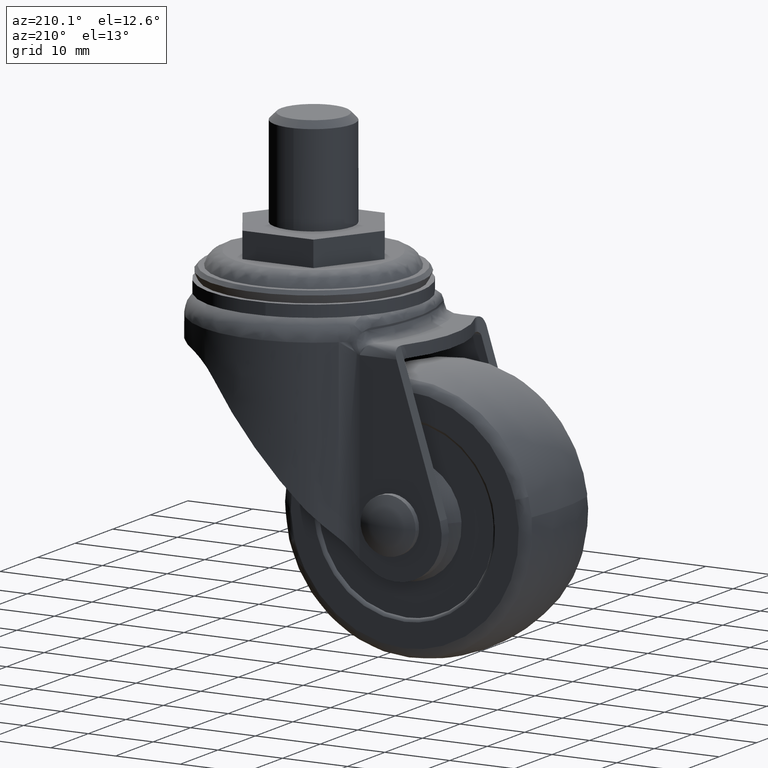
[diagram: clean part render]
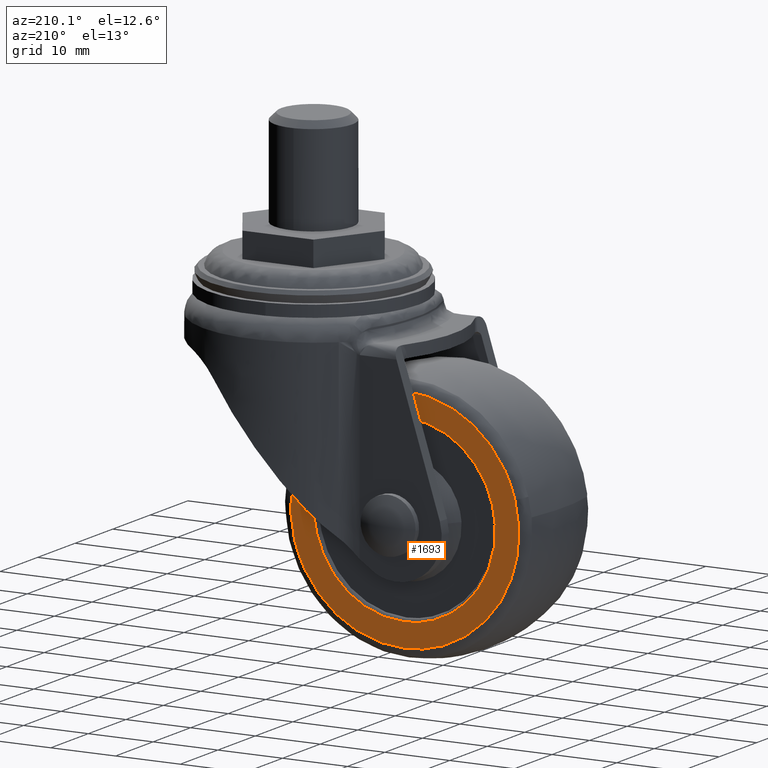
[diagram: same view with one face highlighted and labeled with its STEP entity id]
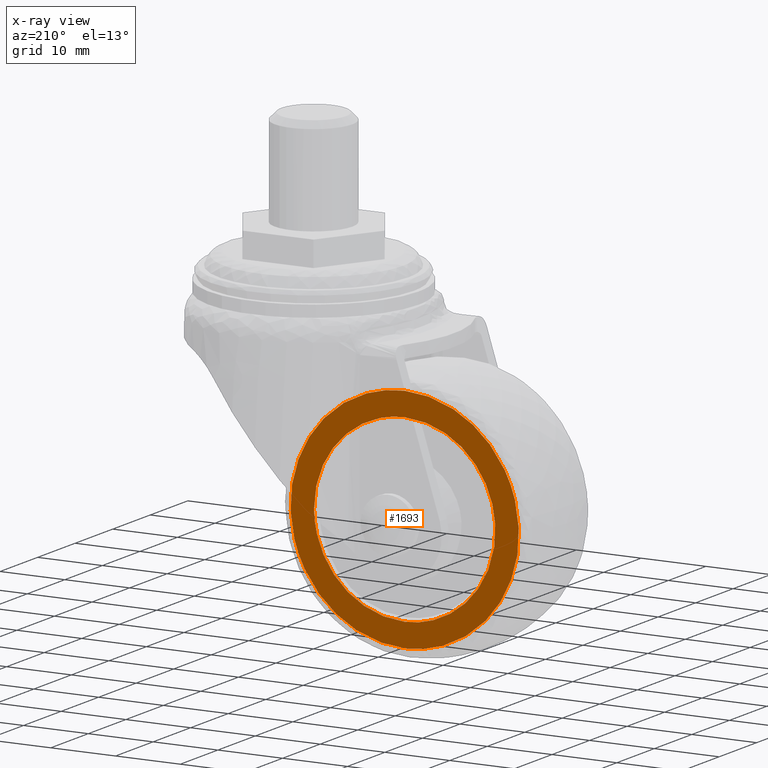
[diagram: x-ray of the same camera — body ghosted, the highlighted face saturated]
A machine part, auxiliary view. The second image highlights one B-rep face of the part: STEP entity #1693.
The next image is the same camera in x-ray: the body ghosted, the highlighted face saturated — about 0% of this face is hidden behind the body in this view.
In plain terms, the highlighted face is a freeform B-spline surface patch.
Its self-contained STEP definition (entity closure, byte-faithful):
#1111=CARTESIAN_POINT('',(-1.983238123140746,8.499999999999947,-37.697853754345672));
#1112=VERTEX_POINT('',#1111);
#1126=CARTESIAN_POINT('',(-19.0,8.500000000000000,-15.473026999999901));
#1127=VERTEX_POINT('',#1126);
#1128=CARTESIAN_POINT('',(-1.983238123140746,8.499999999999947,-37.697853754345680));
#1129=CARTESIAN_POINT('',(-1.373020999999999,8.500000000000000,-35.439423272947117));
#1130=CARTESIAN_POINT('',(-1.373020999999999,8.500000000000000,-33.100005999999887));
#1131=CARTESIAN_POINT('',(-1.373020999999999,8.500000000000000,-15.473026999999901));
#1132=CARTESIAN_POINT('',(-19.0,8.500000000000000,-15.473026999999901));
#1140=(BOUNDED_CURVE()B_SPLINE_CURVE(2,(#1128,#1129,#1130,#1131,#1132),.UNSPECIFIED.,.F.,.U.)B_SPLINE_CURVE_WITH_KNOTS((3,2,3),(0.205522207669771,0.250000000000000,0.500000000000000),.UNSPECIFIED.)CURVE()GEOMETRIC_REPRESENTATION_ITEM()RATIONAL_B_SPLINE_CURVE((0.914323587274300,0.947891024954732,1.0,0.707106781186547,1.0))REPRESENTATION_ITEM(''));
#1141=EDGE_CURVE('',#1112,#1127,#1140,.T.);
#1143=CARTESIAN_POINT('',(-36.016761876859263,8.499999999999947,-28.502158245654119));
#1144=VERTEX_POINT('',#1143);
#1145=CARTESIAN_POINT('',(-19.0,8.500000000000000,-15.473026999999901));
#1146=CARTESIAN_POINT('',(-32.496352864090724,8.500000000000000,-15.473026999999904));
#1147=CARTESIAN_POINT('',(-36.016761876859256,8.499999999999947,-28.502158245654115));
#1155=(BOUNDED_CURVE()B_SPLINE_CURVE(2,(#1145,#1146,#1147),.UNSPECIFIED.,.F.,.U.)B_SPLINE_CURVE_WITH_KNOTS((3,3),(0.500000000000000,0.705522207669770),.UNSPECIFIED.)CURVE()GEOMETRIC_REPRESENTATION_ITEM()RATIONAL_B_SPLINE_CURVE((1.0,0.759215756231816,0.914323587274299))REPRESENTATION_ITEM(''));
#1156=EDGE_CURVE('',#1127,#1144,#1155,.T.);
#1258=CARTESIAN_POINT('',(-19.0,8.500000000000000,-50.726984999999900));
#1259=VERTEX_POINT('',#1258);
#1260=CARTESIAN_POINT('',(-36.016761876859242,8.499999999999947,-28.502158245654122));
#1261=CARTESIAN_POINT('',(-36.626978999999999,8.500000000000000,-30.760588727052664));
#1262=CARTESIAN_POINT('',(-36.626979000000013,8.500000000000000,-33.100005999999887));
#1263=CARTESIAN_POINT('',(-36.626979000000006,8.500000000000000,-50.726984999999907));
#1264=CARTESIAN_POINT('',(-19.0,8.500000000000000,-50.726984999999900));
#1272=(BOUNDED_CURVE()B_SPLINE_CURVE(2,(#1260,#1261,#1262,#1263,#1264),.UNSPECIFIED.,.F.,.U.)B_SPLINE_CURVE_WITH_KNOTS((3,2,3),(0.705522207669771,0.750000000000000,1.0),.UNSPECIFIED.)CURVE()GEOMETRIC_REPRESENTATION_ITEM()RATIONAL_B_SPLINE_CURVE((0.914323587274300,0.947891024954732,1.0,0.707106781186547,1.0))REPRESENTATION_ITEM(''));
#1273=EDGE_CURVE('',#1144,#1259,#1272,.T.);
#1275=CARTESIAN_POINT('',(-19.0,8.500000000000000,-50.726984999999900));
#1276=CARTESIAN_POINT('',(-5.503647135909214,8.500000000000000,-50.726984999999907));
#1277=CARTESIAN_POINT('',(-1.983238123140746,8.499999999999947,-37.697853754345680));
#1285=(BOUNDED_CURVE()B_SPLINE_CURVE(2,(#1275,#1276,#1277),.UNSPECIFIED.,.F.,.U.)B_SPLINE_CURVE_WITH_KNOTS((3,3),(0.0,0.205522207669771),.UNSPECIFIED.)CURVE()GEOMETRIC_REPRESENTATION_ITEM()RATIONAL_B_SPLINE_CURVE((1.0,0.759215756231815,0.914323587274300))REPRESENTATION_ITEM(''));
#1286=EDGE_CURVE('',#1259,#1112,#1285,.T.);
#1321=CARTESIAN_POINT('',(-32.965947361547947,8.500000000000018,-32.123738525522853));
#1322=VERTEX_POINT('',#1321);
#1323=CARTESIAN_POINT('',(-19.0,8.500000000000000,-47.100034000000043));
#1324=VERTEX_POINT('',#1323);
#1325=CARTESIAN_POINT('',(-32.965947361547954,8.500000000000018,-32.123738525522846));
#1326=CARTESIAN_POINT('',(-33.000028000000135,8.500000000000000,-32.611277400125502));
#1327=CARTESIAN_POINT('',(-33.000028000000142,8.500000000000000,-33.100005999999887));
#1328=CARTESIAN_POINT('',(-33.000028000000135,8.500000000000002,-47.100034000000058));
#1329=CARTESIAN_POINT('',(-19.0,8.500000000000000,-47.100034000000043));
#1337=(BOUNDED_CURVE()B_SPLINE_CURVE(2,(#1325,#1326,#1327,#1328,#1329),.UNSPECIFIED.,.F.,.U.)B_SPLINE_CURVE_WITH_KNOTS((3,2,3),(0.737833686530885,0.750000000000000,1.0),.UNSPECIFIED.)CURVE()GEOMETRIC_REPRESENTATION_ITEM()RATIONAL_B_SPLINE_CURVE((0.972879876378078,0.985746277147750,1.0,0.707106781186548,1.0))REPRESENTATION_ITEM(''));
#1338=EDGE_CURVE('',#1322,#1324,#1337,.T.);
#1387=CARTESIAN_POINT('',(-5.001077386810681,8.500000000000018,-33.275930910346361));
#1388=VERTEX_POINT('',#1387);
#1402=CARTESIAN_POINT('',(-19.0,8.500000000000000,-47.100034000000043));
#1403=CARTESIAN_POINT('',(-5.174805331306712,8.500000000000002,-47.100034000000058));
#1404=CARTESIAN_POINT('',(-5.001077386810681,8.500000000000018,-33.275930910346361));
#1412=(BOUNDED_CURVE()B_SPLINE_CURVE(2,(#1402,#1403,#1404),.UNSPECIFIED.,.F.,.U.)B_SPLINE_CURVE_WITH_KNOTS((3,3),(0.0,0.247784295917362),.UNSPECIFIED.)CURVE()GEOMETRIC_REPRESENTATION_ITEM()RATIONAL_B_SPLINE_CURVE((1.0,0.709702639989356,0.994854295633962))REPRESENTATION_ITEM(''));
#1413=EDGE_CURVE('',#1324,#1388,#1412,.T.);
#1441=CARTESIAN_POINT('',(-19.0,8.500000000000000,-19.099977999999759));
#1442=VERTEX_POINT('',#1441);
#1443=CARTESIAN_POINT('',(-19.0,8.500000000000000,-19.099977999999759));
#1444=CARTESIAN_POINT('',(-32.055541972441070,8.500000000000000,-19.099977999999759));
#1445=CARTESIAN_POINT('',(-32.965947361547954,8.500000000000018,-32.123738525522853));
#1453=(BOUNDED_CURVE()B_SPLINE_CURVE(2,(#1443,#1444,#1445),.UNSPECIFIED.,.F.,.U.)B_SPLINE_CURVE_WITH_KNOTS((3,3),(0.500000000000000,0.737833686530884),.UNSPECIFIED.)CURVE()GEOMETRIC_REPRESENTATION_ITEM()RATIONAL_B_SPLINE_CURVE((1.0,0.721360504038799,0.972879876378076))REPRESENTATION_ITEM(''));
#1454=EDGE_CURVE('',#1442,#1322,#1453,.T.);
#1456=CARTESIAN_POINT('',(-5.001077386810681,8.500000000000018,-33.275930910346361));
#1457=CARTESIAN_POINT('',(-4.999971999999859,8.500000000000000,-33.187971927991654));
#1458=CARTESIAN_POINT('',(-4.999971999999859,8.500000000000000,-33.100005999999887));
#1459=CARTESIAN_POINT('',(-4.999971999999859,8.500000000000002,-19.099977999999759));
#1460=CARTESIAN_POINT('',(-19.0,8.500000000000000,-19.099977999999759));
#1468=(BOUNDED_CURVE()B_SPLINE_CURVE(2,(#1456,#1457,#1458,#1459,#1460),.UNSPECIFIED.,.F.,.U.)B_SPLINE_CURVE_WITH_KNOTS((3,2,3),(0.247784295917362,0.250000000000000,0.500000000000000),.UNSPECIFIED.)CURVE()GEOMETRIC_REPRESENTATION_ITEM()RATIONAL_B_SPLINE_CURVE((0.994854295633963,0.997404141197192,1.0,0.707106781186548,1.0))REPRESENTATION_ITEM(''));
#1469=EDGE_CURVE('',#1388,#1442,#1468,.T.);
#1676=CARTESIAN_POINT('',(-38.384315170310643,8.500000000000000,-13.712091866228910));
#1677=CARTESIAN_POINT('',(-38.384315170310643,8.500000000000000,-52.487921079355729));
#1678=CARTESIAN_POINT('',(0.384315800660236,8.500000000000000,-13.712091866228910));
#1679=CARTESIAN_POINT('',(0.384315800660236,8.500000000000000,-52.487921079355729));
#1680=B_SPLINE_SURFACE_WITH_KNOTS('',1,1,((#1676,#1678),(#1677,#1679)),.UNSPECIFIED.,.F.,.F.,.U.,(2,2),(2,2),(0.0,38.775829213126833),(0.0,38.768630970970882),.UNSPECIFIED.);
#1681=ORIENTED_EDGE('',*,*,#1273,.F.);
#1682=ORIENTED_EDGE('',*,*,#1156,.F.);
#1683=ORIENTED_EDGE('',*,*,#1141,.F.);
#1684=ORIENTED_EDGE('',*,*,#1286,.F.);
#1685=EDGE_LOOP('',(#1681,#1682,#1683,#1684));
#1686=FACE_OUTER_BOUND('',#1685,.T.);
#1687=ORIENTED_EDGE('',*,*,#1413,.T.);
#1688=ORIENTED_EDGE('',*,*,#1469,.T.);
#1689=ORIENTED_EDGE('',*,*,#1454,.T.);
#1690=ORIENTED_EDGE('',*,*,#1338,.T.);
#1691=EDGE_LOOP('',(#1687,#1688,#1689,#1690));
#1692=FACE_BOUND('',#1691,.T.);
#1693=ADVANCED_FACE('',(#1686,#1692),#1680,.F.);